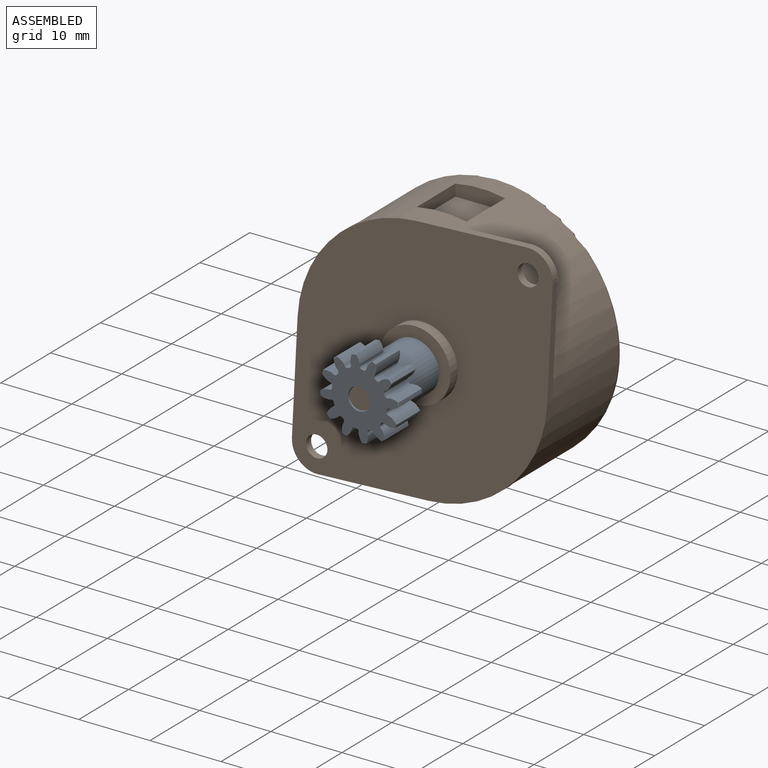
[diagram: assembled view]
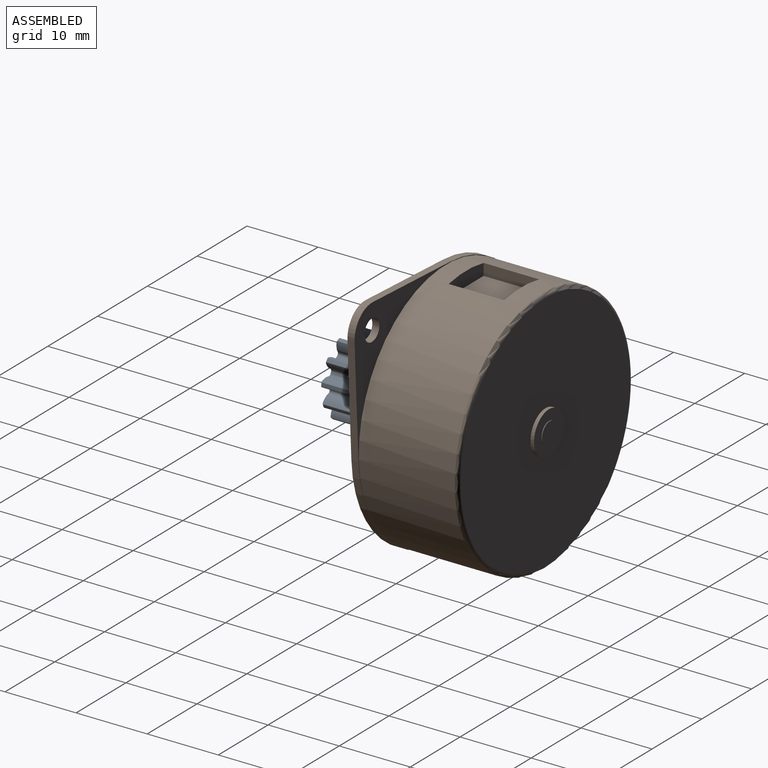
[diagram: assembled view, second angle]
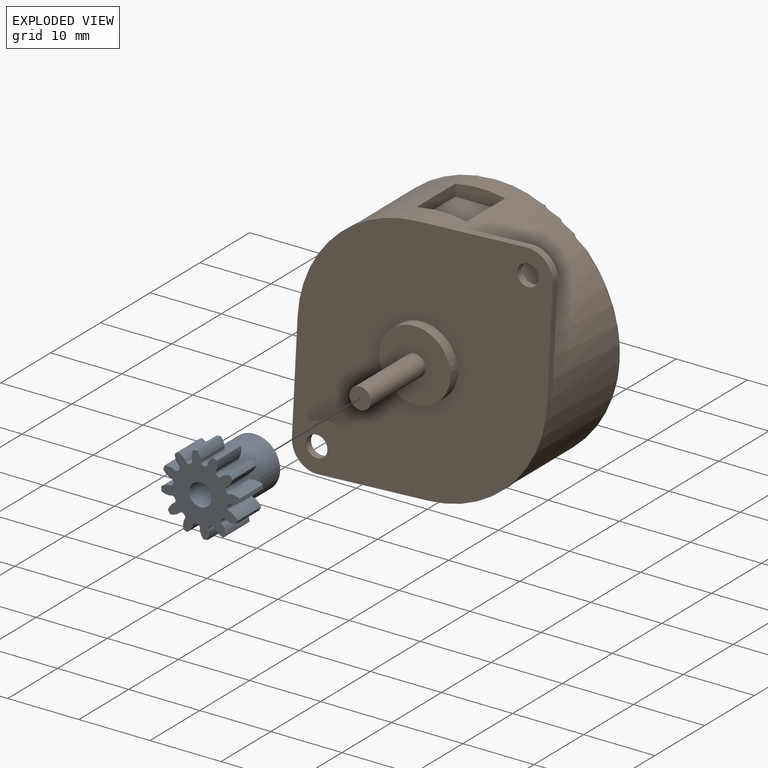
[diagram: exploded view]
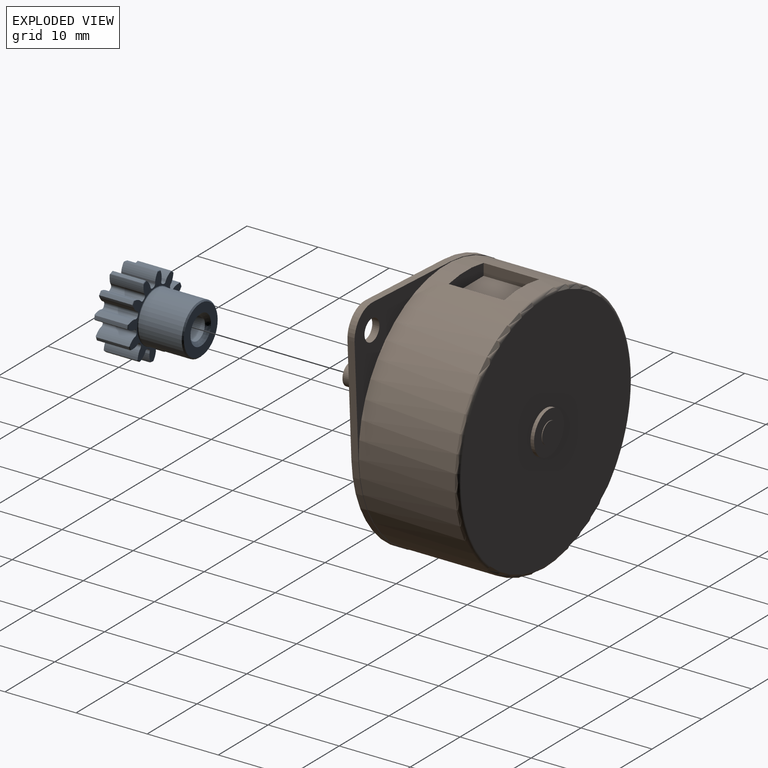
[diagram: exploded view, second angle]
ASSEMBLY  parts=2 mates=2
PART A: 128 faces, bbox 11.2x11.2x11.1 mm
  f0: cylinder r=5.59mm len=4.54mm, axis (0,0,1), area 2.4mm2, adj f1,f2,f115,f118
  f1: torus R=5.48mm, axis (0,0,1), area 0.1mm2, adj f0,f33,f115,f118
  f2: torus R=5.48mm, axis (0,0,1), area 0.1mm2, adj f0,f35,f115,f118
  f3: cylinder r=5.59mm len=4.54mm, axis (0,0,1), area 2.4mm2, adj f4,f5,f108,f111
  f4: torus R=5.48mm, axis (0,0,1), area 0.1mm2, adj f3,f33,f108,f111
  f5: torus R=5.48mm, axis (0,0,1), area 0.1mm2, adj f3,f35,f108,f111
  f6: cylinder r=5.59mm len=4.54mm, axis (0,0,1), area 2.4mm2, adj f7,f8,f101,f104
  f7: torus R=5.48mm, axis (0,0,1), area 0.1mm2, adj f6,f33,f101,f104
  f8: torus R=5.48mm, axis (0,0,1), area 0.1mm2, adj f6,f35,f101,f104
  f9: cylinder r=5.59mm len=4.54mm, axis (0,0,1), area 2.4mm2, adj f10,f11,f94,f97
  f10: torus R=5.48mm, axis (0,0,1), area 0.1mm2, adj f9,f33,f94,f97
  f11: torus R=5.48mm, axis (0,0,1), area 0.1mm2, adj f9,f35,f94,f97
  f12: cylinder r=5.59mm len=4.54mm, axis (0,0,1), area 2.4mm2, adj f13,f14,f87,f90
  f13: torus R=5.48mm, axis (0,0,1), area 0.1mm2, adj f12,f33,f87,f90
  f14: torus R=5.48mm, axis (0,0,1), area 0.1mm2, adj f12,f35,f87,f90
  f15: cylinder r=5.59mm len=4.54mm, axis (0,0,1), area 2.4mm2, adj f16,f17,f80,f83
  f16: torus R=5.48mm, axis (0,0,1), area 0.1mm2, adj f15,f33,f80,f83
  f17: torus R=5.48mm, axis (0,0,1), area 0.1mm2, adj f15,f35,f80,f83
  f18: cylinder r=5.59mm len=4.54mm, axis (0,0,1), area 2.4mm2, adj f19,f20,f73,f76
  f19: torus R=5.48mm, axis (0,0,1), area 0.1mm2, adj f18,f33,f73,f76
  f20: torus R=5.48mm, axis (0,0,1), area 0.1mm2, adj f18,f35,f73,f76
  f21: cylinder r=5.59mm len=4.54mm, axis (0,0,1), area 2.4mm2, adj f22,f23,f66,f69
  f22: torus R=5.48mm, axis (0,0,1), area 0.1mm2, adj f21,f33,f66,f69
  f23: torus R=5.48mm, axis (0,0,1), area 0.1mm2, adj f21,f35,f66,f69
  f24: cylinder r=5.59mm len=4.54mm, axis (0,0,1), area 2.4mm2, adj f25,f26,f59,f62
  f25: torus R=5.48mm, axis (0,0,1), area 0.1mm2, adj f24,f33,f59,f62
  f26: torus R=5.48mm, axis (0,0,1), area 0.1mm2, adj f24,f35,f59,f62
  f27: cylinder r=5.59mm len=4.54mm, axis (0,0,1), area 2.4mm2, adj f28,f29,f52,f55
  f28: torus R=5.48mm, axis (0,0,1), area 0.1mm2, adj f27,f33,f52,f55
  f29: torus R=5.48mm, axis (0,0,1), area 0.1mm2, adj f27,f35,f52,f55
  f30: cylinder r=5.59mm len=4.54mm, axis (0,0,1), area 2.4mm2, adj f31,f32,f44,f48
  f31: torus R=5.48mm, axis (0,0,1), area 0.1mm2, adj f30,f33,f44,f48
  f32: torus R=5.48mm, axis (0,0,1), area 0.1mm2, adj f30,f35,f44,f48
  f33: plane 10.93x10.93mm, normal (0,0,-1), area 26.9mm2, adj f1,f4,f7,f10,f13,f16,f19,f22
  f34: cylinder r=5.59mm len=4.54mm, axis (0,0,1), area 2.4mm2, adj f39,f40,f45,f122
  f35: plane 10.93x10.93mm, normal (0,0,1), area 61.9mm2, adj f2,f5,f8,f11,f14,f17,f20,f23
  f36: cylinder r=3.57mm len=7.14mm, axis (0,0,1), area 136.3mm2, adj f38,f125
  f37: plane 6.79x6.79mm, normal (0,0,-1), area 22.7mm2, adj f125,f127
  f38: torus R=3.68mm, axis (0,0,1), area 4mm2, adj f33,f36
  f39: torus R=5.48mm, axis (0,0,1), area 0.1mm2, adj f33,f34,f45,f122
  f40: torus R=5.48mm, axis (0,0,1), area 0.1mm2, adj f34,f35,f45,f122
  f41: plane 4.76x0.27mm, normal (-0.97,0.26,0), area 1.3mm2, adj f33,f35,f45,f46
  f42: cylinder r=3.84mm len=4.76mm, axis (0,0,1), area 0.9mm2, adj f33,f35,f46,f47
  f43: plane 4.76x0.28mm, normal (1,0,0), area 1.3mm2, adj f33,f35,f44,f47
  f44: cylinder r=2.39mm len=4.76mm, axis (0,0,-1), area 5.9mm2, adj f30,f31,f32,f33,f35,f43
  f45: cylinder r=2.39mm len=4.76mm, axis (0,0,-1), area 5.9mm2, adj f33,f34,f35,f39,f40,f41
  f46: cylinder r=0.37mm len=4.76mm, axis (0,0,1), area 2.6mm2, adj f33,f35,f41,f42
  f47: cylinder r=0.37mm len=4.76mm, axis (0,0,1), area 2.6mm2, adj f33,f35,f42,f43
  f48: cylinder r=2.39mm len=4.76mm, axis (0,0,-1), area 5.9mm2, adj f30,f31,f32,f33,f35,f49
  f49: plane 4.76x0.27mm, normal (-0.97,-0.26,0), area 1.3mm2, adj f33,f35,f48,f50
  f50: cylinder r=0.37mm len=4.76mm, axis (0,0,1), area 2.6mm2, adj f33,f35,f49,f51
  f51: cylinder r=3.84mm len=4.76mm, axis (0,0,1), area 0.9mm2, adj f33,f35,f50,f54
  f52: cylinder r=2.39mm len=4.76mm, axis (0,0,-1), area 5.9mm2, adj f27,f28,f29,f33,f35,f53
  f53: plane 4.76x0.24mm, normal (0.87,0.5,0), area 1.3mm2, adj f33,f35,f52,f54
  f54: cylinder r=0.37mm len=4.76mm, axis (0,0,1), area 2.6mm2, adj f33,f35,f51,f53
  f55: cylinder r=2.39mm len=4.76mm, axis (0,0,-1), area 5.9mm2, adj f27,f28,f29,f33,f35,f56
  f56: plane 4.76x0.2mm, normal (-0.71,-0.71,0), area 1.3mm2, adj f33,f35,f55,f57
  f57: cylinder r=0.37mm len=4.76mm, axis (0,0,1), area 2.6mm2, adj f33,f35,f56,f58
  f58: cylinder r=3.84mm len=4.76mm, axis (0,0,1), area 0.9mm2, adj f33,f35,f57,f61
  f59: cylinder r=2.39mm len=4.76mm, axis (0,0,-1), area 5.9mm2, adj f24,f25,f26,f33,f35,f60
  f60: plane 4.76x0.24mm, normal (0.5,0.87,0), area 1.3mm2, adj f33,f35,f59,f61
  f61: cylinder r=0.37mm len=4.76mm, axis (0,0,1), area 2.6mm2, adj f33,f35,f58,f60
  f62: cylinder r=2.39mm len=4.76mm, axis (0,0,-1), area 5.9mm2, adj f24,f25,f26,f33,f35,f63
  f63: plane 4.76x0.27mm, normal (-0.26,-0.97,0), area 1.3mm2, adj f33,f35,f62,f64
  f64: cylinder r=0.37mm len=4.76mm, axis (0,0,1), area 2.6mm2, adj f33,f35,f63,f65
  f65: cylinder r=3.84mm len=4.76mm, axis (0,0,1), area 0.9mm2, adj f33,f35,f64,f68
  f66: cylinder r=2.39mm len=4.76mm, axis (0,0,-1), area 5.9mm2, adj f21,f22,f23,f33,f35,f67
  f67: plane 4.76x0.28mm, normal (0,1,0), area 1.3mm2, adj f33,f35,f66,f68
  f68: cylinder r=0.37mm len=4.76mm, axis (0,0,1), area 2.6mm2, adj f33,f35,f65,f67
  f69: cylinder r=2.39mm len=4.76mm, axis (0,0,-1), area 5.9mm2, adj f21,f22,f23,f33,f35,f70
  f70: plane 4.76x0.27mm, normal (0.26,-0.97,0), area 1.3mm2, adj f33,f35,f69,f71
  f71: cylinder r=0.37mm len=4.76mm, axis (0,0,1), area 2.6mm2, adj f33,f35,f70,f72
  f72: cylinder r=3.84mm len=4.76mm, axis (0,0,1), area 0.9mm2, adj f33,f35,f71,f75
  f73: cylinder r=2.39mm len=4.76mm, axis (0,0,-1), area 5.9mm2, adj f18,f19,f20,f33,f35,f74
  f74: plane 4.76x0.24mm, normal (-0.5,0.87,0), area 1.3mm2, adj f33,f35,f73,f75
  f75: cylinder r=0.37mm len=4.76mm, axis (0,0,1), area 2.6mm2, adj f33,f35,f72,f74
  f76: cylinder r=2.39mm len=4.76mm, axis (0,0,-1), area 5.9mm2, adj f18,f19,f20,f33,f35,f77
  f77: plane 4.76x0.2mm, normal (0.71,-0.71,0), area 1.3mm2, adj f33,f35,f76,f78
  f78: cylinder r=0.37mm len=4.76mm, axis (0,0,1), area 2.6mm2, adj f33,f35,f77,f79
  f79: cylinder r=3.84mm len=4.76mm, axis (0,0,1), area 0.9mm2, adj f33,f35,f78,f82
  f80: cylinder r=2.39mm len=4.76mm, axis (0,0,-1), area 5.9mm2, adj f15,f16,f17,f33,f35,f81
  f81: plane 4.76x0.24mm, normal (-0.87,0.5,0), area 1.3mm2, adj f33,f35,f80,f82
  f82: cylinder r=0.37mm len=4.76mm, axis (0,0,1), area 2.6mm2, adj f33,f35,f79,f81
  f83: cylinder r=2.39mm len=4.76mm, axis (0,0,-1), area 5.9mm2, adj f15,f16,f17,f33,f35,f84
  f84: plane 4.76x0.27mm, normal (0.97,-0.26,0), area 1.3mm2, adj f33,f35,f83,f85
  f85: cylinder r=0.37mm len=4.76mm, axis (0,0,1), area 2.6mm2, adj f33,f35,f84,f86
  f86: cylinder r=3.84mm len=4.76mm, axis (0,0,1), area 0.9mm2, adj f33,f35,f85,f89
  f87: cylinder r=2.39mm len=4.76mm, axis (0,0,-1), area 5.9mm2, adj f12,f13,f14,f33,f35,f88
  f88: plane 4.76x0.28mm, normal (-1,0,0), area 1.3mm2, adj f33,f35,f87,f89
  f89: cylinder r=0.37mm len=4.76mm, axis (0,0,1), area 2.6mm2, adj f33,f35,f86,f88
  f90: cylinder r=2.39mm len=4.76mm, axis (0,0,-1), area 5.9mm2, adj f12,f13,f14,f33,f35,f91
  f91: plane 4.76x0.27mm, normal (0.97,0.26,0), area 1.3mm2, adj f33,f35,f90,f92
  f92: cylinder r=0.37mm len=4.76mm, axis (0,0,1), area 2.6mm2, adj f33,f35,f91,f93
  f93: cylinder r=3.84mm len=4.76mm, axis (0,0,1), area 0.9mm2, adj f33,f35,f92,f96
  f94: cylinder r=2.39mm len=4.76mm, axis (0,0,-1), area 5.9mm2, adj f9,f10,f11,f33,f35,f95
  f95: plane 4.76x0.24mm, normal (-0.87,-0.5,0), area 1.3mm2, adj f33,f35,f94,f96
  f96: cylinder r=0.37mm len=4.76mm, axis (0,0,1), area 2.6mm2, adj f33,f35,f93,f95
  f97: cylinder r=2.39mm len=4.76mm, axis (0,0,-1), area 5.9mm2, adj f9,f10,f11,f33,f35,f98
  f98: plane 4.76x0.2mm, normal (0.71,0.71,0), area 1.3mm2, adj f33,f35,f97,f99
  f99: cylinder r=0.37mm len=4.76mm, axis (0,0,1), area 2.6mm2, adj f33,f35,f98,f100
  f100: cylinder r=3.84mm len=4.76mm, axis (0,0,1), area 0.9mm2, adj f33,f35,f99,f103
  f101: cylinder r=2.39mm len=4.76mm, axis (0,0,-1), area 5.9mm2, adj f6,f7,f8,f33,f35,f102
  f102: plane 4.76x0.24mm, normal (-0.5,-0.87,0), area 1.3mm2, adj f33,f35,f101,f103
  f103: cylinder r=0.37mm len=4.76mm, axis (0,0,1), area 2.6mm2, adj f33,f35,f100,f102
  f104: cylinder r=2.39mm len=4.76mm, axis (0,0,-1), area 5.9mm2, adj f6,f7,f8,f33,f35,f105
  f105: plane 4.76x0.27mm, normal (0.26,0.97,0), area 1.3mm2, adj f33,f35,f104,f106
  f106: cylinder r=0.37mm len=4.76mm, axis (0,0,1), area 2.6mm2, adj f33,f35,f105,f107
  f107: cylinder r=3.84mm len=4.76mm, axis (0,0,1), area 0.9mm2, adj f33,f35,f106,f110
  f108: cylinder r=2.39mm len=4.76mm, axis (0,0,-1), area 5.9mm2, adj f3,f4,f5,f33,f35,f109
  f109: plane 4.76x0.28mm, normal (0,-1,0), area 1.3mm2, adj f33,f35,f108,f110
  f110: cylinder r=0.37mm len=4.76mm, axis (0,0,1), area 2.6mm2, adj f33,f35,f107,f109
  f111: cylinder r=2.39mm len=4.76mm, axis (0,0,-1), area 5.9mm2, adj f3,f4,f5,f33,f35,f112
  f112: plane 4.76x0.27mm, normal (-0.26,0.97,0), area 1.3mm2, adj f33,f35,f111,f113
  f113: cylinder r=0.37mm len=4.76mm, axis (0,0,1), area 2.6mm2, adj f33,f35,f112,f114
  f114: cylinder r=3.84mm len=4.76mm, axis (0,0,1), area 0.9mm2, adj f33,f35,f113,f117
  f115: cylinder r=2.39mm len=4.76mm, axis (0,0,-1), area 5.9mm2, adj f0,f1,f2,f33,f35,f116
  f116: plane 4.76x0.24mm, normal (0.5,-0.87,0), area 1.3mm2, adj f33,f35,f115,f117
  f117: cylinder r=0.37mm len=4.76mm, axis (0,0,1), area 2.6mm2, adj f33,f35,f114,f116
  f118: cylinder r=2.39mm len=4.76mm, axis (0,0,-1), area 5.9mm2, adj f0,f1,f2,f33,f35,f119
  f119: plane 4.76x0.2mm, normal (-0.71,0.71,0), area 1.3mm2, adj f33,f35,f118,f120
  f120: cylinder r=0.37mm len=4.76mm, axis (0,0,1), area 2.6mm2, adj f33,f35,f119,f121
  f121: cylinder r=3.84mm len=4.76mm, axis (0,0,1), area 0.9mm2, adj f33,f35,f120,f124
  f122: cylinder r=2.39mm len=4.76mm, axis (0,0,-1), area 5.9mm2, adj f33,f34,f35,f39,f40,f123
  f123: plane 4.76x0.24mm, normal (0.87,-0.5,0), area 1.3mm2, adj f33,f35,f122,f124
  f124: cylinder r=0.37mm len=4.76mm, axis (0,0,1), area 2.6mm2, adj f33,f35,f121,f123
  f125: cone r=3.57mm half-angle=45deg, axis (0,0,1), area 5.5mm2, adj f36,f37
  f126: cylinder r=1.56mm len=10.62mm, axis (0,0,1), area 104.2mm2, adj f35,f127
  f127: cone r=2.07mm half-angle=45deg, axis (0,0,-1), area 8.2mm2, adj f37,f126
PART B: 28 faces, bbox 37.9x28.1x37.9 mm
  f0: plane 6x6mm, normal (0,1,0), area 21.2mm2, adj f19,f20
  f1: plane 34x34mm, normal (0,1,0), area 879.6mm2, adj f19,f22
  f2: plane 10x10mm, normal (0,-1,0), area 71.5mm2, adj f16,f17
  f3: plane 36.7x36.7mm, normal (0,-1,0), area 1038.6mm2, adj f6,f7,f8,f9,f10,f11,f12,f13
  f4: cylinder r=17.5mm len=35mm, axis (0,-1,0), area 1429.4mm2, adj f5,f22,f23,f24,f25,f26
  f5: plane 36.7x36.7mm, normal (0,1,0), area 155mm2, adj f4,f6,f7,f8,f9,f10,f11,f12
  f6: cylinder r=3.5mm len=3.68mm, axis (0,1,0), area 5.9mm2, adj f3,f5,f7,f13
  f7: plane 15.56x1mm, normal (-0.05,0,1), area 15.6mm2, adj f3,f5,f6,f8
  f8: cylinder r=17.58mm len=16.66mm, axis (0,1,0), area 25.8mm2, adj f3,f5,f7,f9
  f9: plane 15.56x1mm, normal (-1,0,0.05), area 15.6mm2, adj f3,f5,f8,f10
  f10: cylinder r=3.5mm len=3.68mm, axis (0,1,0), area 5.9mm2, adj f3,f5,f9,f11
  f11: plane 15.56x1mm, normal (0.05,0,-1), area 15.6mm2, adj f3,f5,f10,f12
  f12: cylinder r=17.58mm len=16.66mm, axis (0,1,0), area 25.8mm2, adj f3,f5,f11,f13
  f13: plane 15.56x1mm, normal (1,0,-0.05), area 15.6mm2, adj f3,f5,f6,f12
  f14: cylinder r=1.5mm len=3mm, axis (0,1,0), area 9.4mm2, adj f3,f5
  f15: cylinder r=1.5mm len=3mm, axis (0,1,0), area 9.4mm2, adj f3,f5
  f16: cylinder r=5mm len=10mm, axis (0,1,0), area 47.1mm2, adj f2,f3
  f17: cylinder r=1.5mm len=11mm, axis (0,1,0), area 103.7mm2, adj f2,f18
  f18: plane 3x3mm, normal (0,-1,0), area 7.1mm2, adj f17
  f19: cylinder r=3mm len=6mm, axis (0,-1,0), area 9.4mm2, adj f0,f1
  f20: cylinder r=1.5mm len=3mm, axis (0,-1,0), area 0.9mm2, adj f0,f21
  f21: plane 3x3mm, normal (0,1,0), area 7.1mm2, adj f20
  f22: torus R=17mm, axis (0,1,0), area 85.5mm2, adj f1,f4
  f23: plane 7.8x1.65mm, normal (1,0,0), area 12.8mm2, adj f4,f24,f26,f27
  f24: plane 7x2mm, normal (0,-1,0), area 13.2mm2, adj f4,f23,f25,f27
  f25: plane 7.8x1.65mm, normal (-1,0,0), area 12.8mm2, adj f4,f24,f26,f27
  f26: plane 7x2mm, normal (0,1,0), area 13.2mm2, adj f4,f23,f25,f27
  f27: plane 7.8x7mm, normal (0,0,1), area 54.6mm2, adj f23,f24,f25,f26
PLACE A rot(axis=(1,0,0),90deg) t=(0,-13.7,0)mm
PLACE B at identity fixed
MATE planar A.f35 <-> B.f4  axis (0,-1,0) through (-1.55,-13.7,3.52)mm
MATE cylindrical A.f126 <-> B.f4  axis (0,-1,0) through (0,-13.7,0)mm
